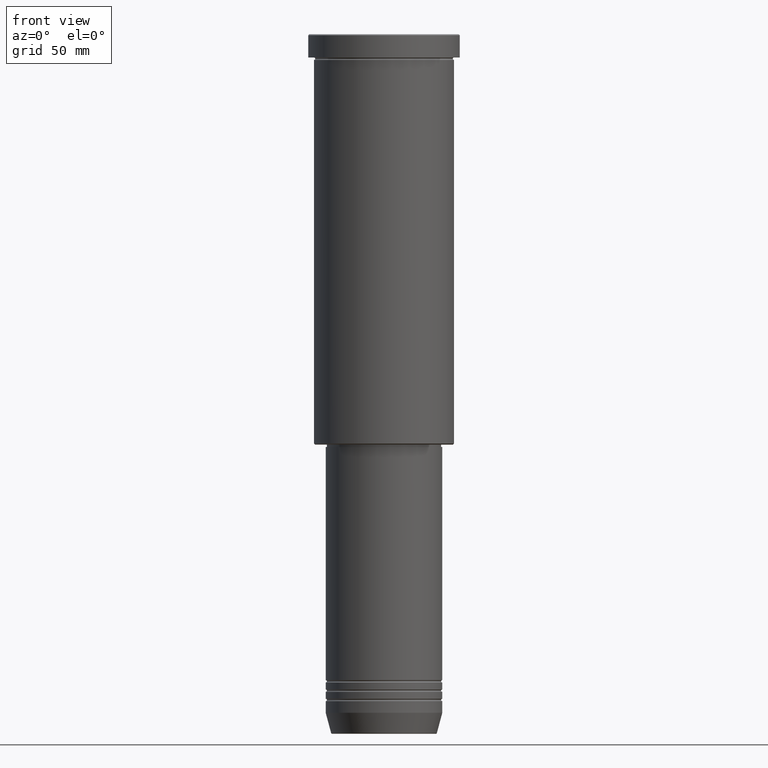
[diagram: clean part render]
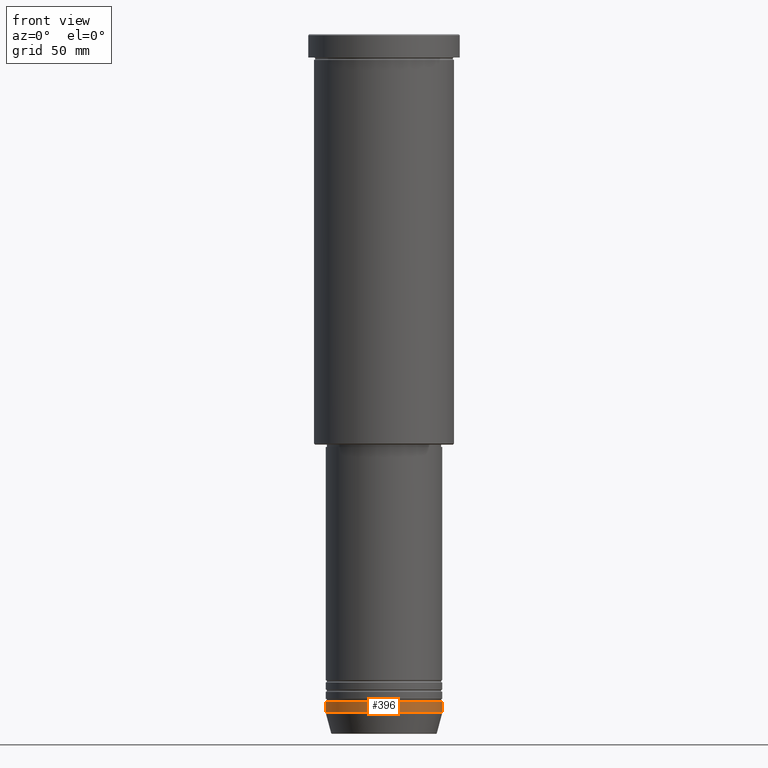
[diagram: same view with one face highlighted and labeled with its STEP entity id]
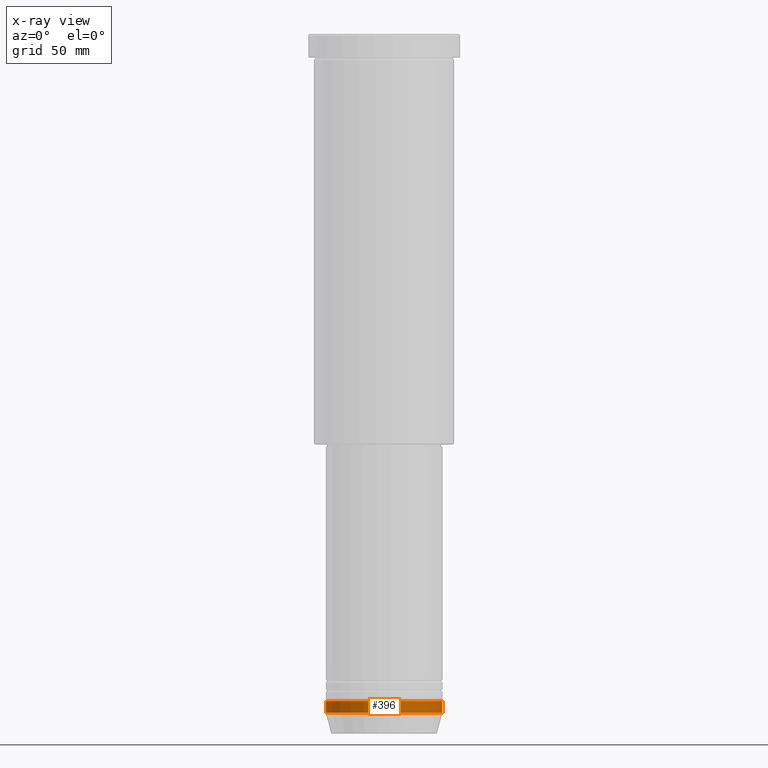
[diagram: x-ray of the same camera — body ghosted, the highlighted face saturated]
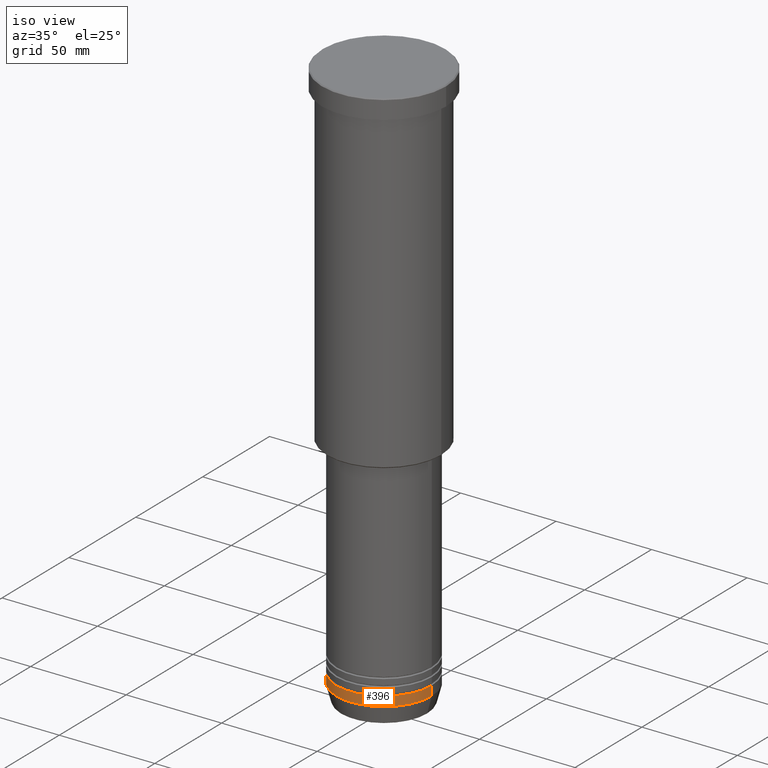
[diagram: same view with one face highlighted and labeled with its STEP entity id]
A machine part, front view. The second image highlights one B-rep face of the part: STEP entity #396.
The next image is the same camera in x-ray: the body ghosted, the highlighted face saturated — about 0% of this face is hidden behind the body in this view.
A second angle (iso view) of the same face is appended — the face is thin or edge-on in the first view.
In plain terms, the highlighted cylindrical surface (partial cylindrical patch) has radius 25 mm, axis along (-0, -0, 1).
Its self-contained STEP definition (entity closure, byte-faithful):
#4 = CARTESIAN_POINT ( 'NONE',  ( 25.00000000000000000, 0.000000000000000000, 0.000000000000000000 ) ) ;
#31 = VECTOR ( 'NONE', #75, 1000.000000000000000 ) ;
#68 = CARTESIAN_POINT ( 'NONE',  ( 25.00000000000000000, 0.000000000000000000, -291.0000000000000000 ) ) ;
#75 = DIRECTION ( 'NONE',  ( -0.000000000000000000, -0.000000000000000000, 1.000000000000000000 ) ) ;
#114 = CIRCLE ( 'NONE', #759, 25.00000000000000000 ) ;
#125 = ORIENTED_EDGE ( 'NONE', *, *, #872, .T. ) ;
#130 = EDGE_CURVE ( 'NONE', #862, #446, #183, .T. ) ;
#138 = FACE_OUTER_BOUND ( 'NONE', #553, .T. ) ;
#148 = EDGE_CURVE ( 'NONE', #866, #446, #819, .T. ) ;
#164 = CARTESIAN_POINT ( 'NONE',  ( 25.00000000000000000, 0.000000000000000000, -286.0000000000000000 ) ) ;
#169 = CARTESIAN_POINT ( 'NONE',  ( 0.000000000000000000, 0.000000000000000000, -286.0000000000000000 ) ) ;
#176 = DIRECTION ( 'NONE',  ( -0.000000000000000000, -0.000000000000000000, 1.000000000000000000 ) ) ;
#178 = DIRECTION ( 'NONE',  ( 1.000000000000000000, 0.000000000000000000, 0.000000000000000000 ) ) ;
#183 = CIRCLE ( 'NONE', #920, 25.00000000000000000 ) ;
#224 = DIRECTION ( 'NONE',  ( 1.000000000000000000, 0.000000000000000000, 0.000000000000000000 ) ) ;
#249 = DIRECTION ( 'NONE',  ( -0.000000000000000000, -0.000000000000000000, 1.000000000000000000 ) ) ;
#313 = AXIS2_PLACEMENT_3D ( 'NONE', #756, #1121, #224 ) ;
#353 = DIRECTION ( 'NONE',  ( -0.000000000000000000, -0.000000000000000000, 1.000000000000000000 ) ) ;
#396 = ADVANCED_FACE ( 'NONE', ( #138 ), #679, .T. ) ;
#446 = VERTEX_POINT ( 'NONE', #164 ) ;
#450 = DIRECTION ( 'NONE',  ( 1.000000000000000000, 0.000000000000000000, 0.000000000000000000 ) ) ;
#465 = VECTOR ( 'NONE', #249, 1000.000000000000000 ) ;
#535 = EDGE_CURVE ( 'NONE', #740, #862, #798, .T. ) ;
#553 = EDGE_LOOP ( 'NONE', ( #748, #125, #780, #948 ) ) ;
#679 = CYLINDRICAL_SURFACE ( 'NONE', #313, 25.00000000000000000 ) ;
#740 = VERTEX_POINT ( 'NONE', #858 ) ;
#748 = ORIENTED_EDGE ( 'NONE', *, *, #535, .F. ) ;
#756 = CARTESIAN_POINT ( 'NONE',  ( 0.000000000000000000, 0.000000000000000000, 0.000000000000000000 ) ) ;
#759 = AXIS2_PLACEMENT_3D ( 'NONE', #1165, #353, #178 ) ;
#780 = ORIENTED_EDGE ( 'NONE', *, *, #148, .T. ) ;
#798 = LINE ( 'NONE', #970, #465 ) ;
#819 = LINE ( 'NONE', #4, #31 ) ;
#858 = CARTESIAN_POINT ( 'NONE',  ( -25.00000000000000000, 3.061616997868383043E-15, -291.0000000000000000 ) ) ;
#862 = VERTEX_POINT ( 'NONE', #1169 ) ;
#866 = VERTEX_POINT ( 'NONE', #68 ) ;
#872 = EDGE_CURVE ( 'NONE', #740, #866, #114, .T. ) ;
#920 = AXIS2_PLACEMENT_3D ( 'NONE', #169, #176, #450 ) ;
#948 = ORIENTED_EDGE ( 'NONE', *, *, #130, .F. ) ;
#970 = CARTESIAN_POINT ( 'NONE',  ( -25.00000000000000000, 3.061616997868383043E-15, 0.000000000000000000 ) ) ;
#1121 = DIRECTION ( 'NONE',  ( -0.000000000000000000, -0.000000000000000000, 1.000000000000000000 ) ) ;
#1165 = CARTESIAN_POINT ( 'NONE',  ( 0.000000000000000000, 0.000000000000000000, -291.0000000000000000 ) ) ;
#1169 = CARTESIAN_POINT ( 'NONE',  ( -25.00000000000000000, 3.061616997868383043E-15, -286.0000000000000000 ) ) ;